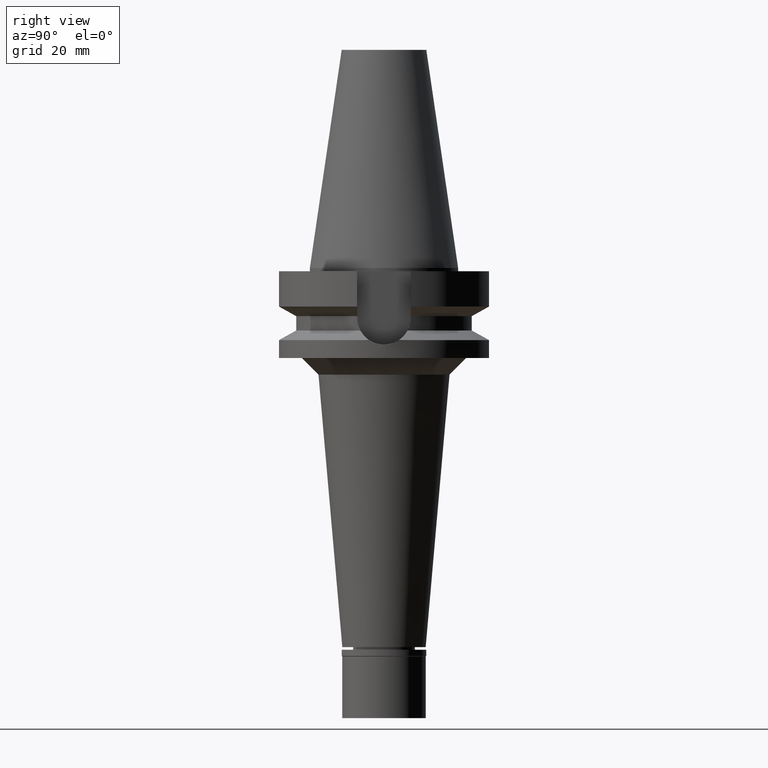
[diagram: clean part render]
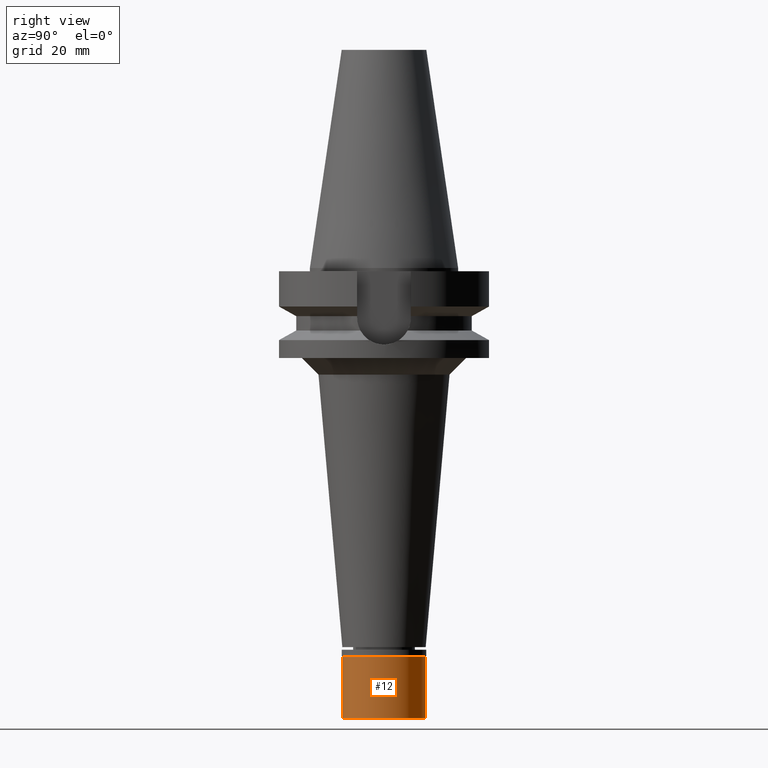
[diagram: same view with one face highlighted and labeled with its STEP entity id]
A machine part, right view. The second image highlights one B-rep face of the part: STEP entity #12.
In plain terms, the highlighted cylindrical surface (partial cylindrical patch) has radius 12.5 mm, axis along (0, 0, -1).
Its self-contained STEP definition (entity closure, byte-faithful):
#12 = ADVANCED_FACE ( 'NONE', ( #806 ), #1741, .T. ) ;
#38 = DIRECTION ( 'NONE',  ( 0.0000000000000000000, -1.000000000000000000, 0.0000000000000000000 ) ) ;
#414 = AXIS2_PLACEMENT_3D ( 'NONE', #1590, #3054, #1557 ) ;
#483 = VERTEX_POINT ( 'NONE', #2324 ) ;
#549 = DIRECTION ( 'NONE',  ( 0.0000000000000000000, 0.0000000000000000000, -1.000000000000000000 ) ) ;
#574 = VECTOR ( 'NONE', #549, 1000.000000000000000 ) ;
#575 = VERTEX_POINT ( 'NONE', #3134 ) ;
#628 = EDGE_CURVE ( 'NONE', #2062, #575, #753, .T. ) ;
#738 = CARTESIAN_POINT ( 'NONE',  ( 0.0000000000000000000, 0.0000000000000000000, -20.50000000000000000 ) ) ;
#753 = LINE ( 'NONE', #1248, #978 ) ;
#766 = DIRECTION ( 'NONE',  ( 0.0000000000000000000, 0.0000000000000000000, 1.000000000000000000 ) ) ;
#806 = FACE_OUTER_BOUND ( 'NONE', #3045, .T. ) ;
#899 = VERTEX_POINT ( 'NONE', #1004 ) ;
#978 = VECTOR ( 'NONE', #1007, 1000.000000000000000 ) ;
#1004 = CARTESIAN_POINT ( 'NONE',  ( 0.0000000000000000000, 12.50000000000000000, -2.000000000000000000 ) ) ;
#1007 = DIRECTION ( 'NONE',  ( 0.0000000000000000000, 0.0000000000000000000, -1.000000000000000000 ) ) ;
#1111 = ORIENTED_EDGE ( 'NONE', *, *, #2367, .T. ) ;
#1202 = AXIS2_PLACEMENT_3D ( 'NONE', #2935, #1268, #1469 ) ;
#1248 = CARTESIAN_POINT ( 'NONE',  ( 0.0000000000000000000, -12.50000000000000000, -2.000000000000000000 ) ) ;
#1268 = DIRECTION ( 'NONE',  ( 0.0000000000000000000, 0.0000000000000000000, -1.000000000000000000 ) ) ;
#1394 = CIRCLE ( 'NONE', #414, 12.50000000000000000 ) ;
#1469 = DIRECTION ( 'NONE',  ( 0.0000000000000000000, -1.000000000000000000, 0.0000000000000000000 ) ) ;
#1523 = EDGE_CURVE ( 'NONE', #575, #483, #2501, .T. ) ;
#1557 = DIRECTION ( 'NONE',  ( 0.0000000000000000000, 1.000000000000000000, 0.0000000000000000000 ) ) ;
#1590 = CARTESIAN_POINT ( 'NONE',  ( 0.0000000000000000000, 0.0000000000000000000, -2.000000000000000000 ) ) ;
#1741 = CYLINDRICAL_SURFACE ( 'NONE', #1202, 12.50000000000000000 ) ;
#2062 = VERTEX_POINT ( 'NONE', #2253 ) ;
#2136 = EDGE_CURVE ( 'NONE', #899, #483, #2732, .T. ) ;
#2253 = CARTESIAN_POINT ( 'NONE',  ( 0.0000000000000000000, -12.50000000000000000, -2.000000000000000000 ) ) ;
#2262 = ORIENTED_EDGE ( 'NONE', *, *, #628, .T. ) ;
#2324 = CARTESIAN_POINT ( 'NONE',  ( 0.0000000000000000000, 12.50000000000000000, -20.50000000000000000 ) ) ;
#2367 = EDGE_CURVE ( 'NONE', #899, #2062, #1394, .T. ) ;
#2487 = CARTESIAN_POINT ( 'NONE',  ( 0.0000000000000000000, 12.50000000000000000, -2.000000000000000000 ) ) ;
#2501 = CIRCLE ( 'NONE', #2756, 12.50000000000000000 ) ;
#2570 = ORIENTED_EDGE ( 'NONE', *, *, #1523, .T. ) ;
#2732 = LINE ( 'NONE', #2487, #574 ) ;
#2756 = AXIS2_PLACEMENT_3D ( 'NONE', #738, #766, #38 ) ;
#2757 = ORIENTED_EDGE ( 'NONE', *, *, #2136, .F. ) ;
#2935 = CARTESIAN_POINT ( 'NONE',  ( 0.0000000000000000000, 0.0000000000000000000, 0.0000000000000000000 ) ) ;
#3045 = EDGE_LOOP ( 'NONE', ( #1111, #2262, #2570, #2757 ) ) ;
#3054 = DIRECTION ( 'NONE',  ( 0.0000000000000000000, 0.0000000000000000000, -1.000000000000000000 ) ) ;
#3134 = CARTESIAN_POINT ( 'NONE',  ( 0.0000000000000000000, -12.50000000000000000, -20.50000000000000000 ) ) ;